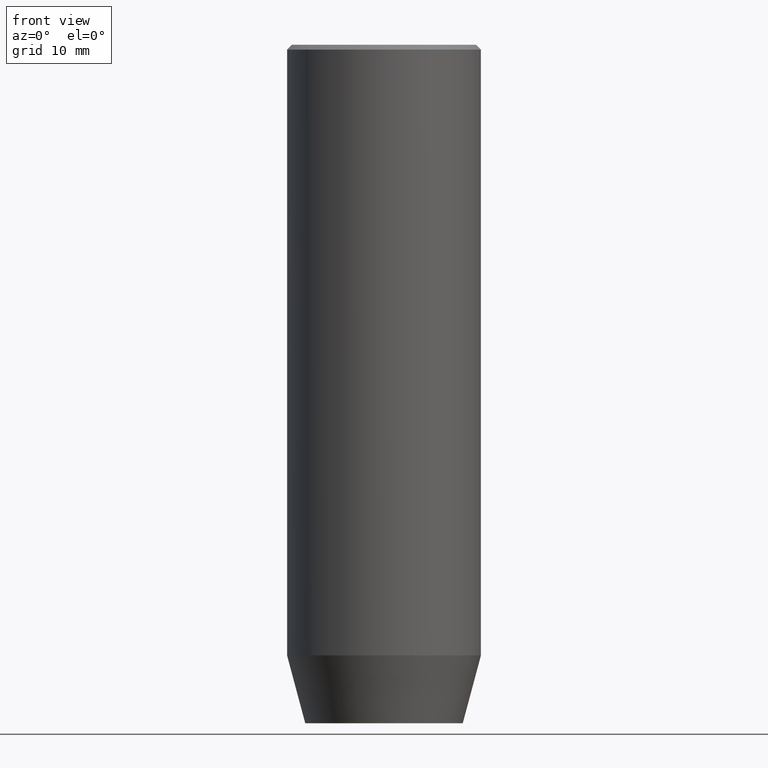
[diagram: clean part render]
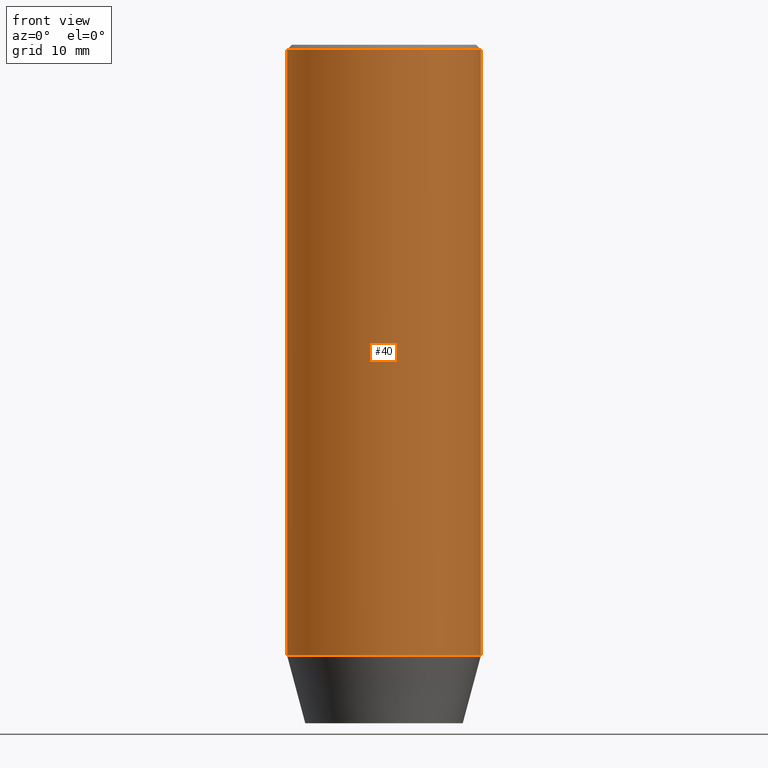
[diagram: same view with one face highlighted and labeled with its STEP entity id]
A machine part, front view. The second image highlights one B-rep face of the part: STEP entity #40.
In plain terms, the highlighted cylindrical surface (partial cylindrical patch) has radius 10 mm, axis along (-0, -0, 1).
Its self-contained STEP definition (entity closure, byte-faithful):
#40 = ADVANCED_FACE ( 'NONE', ( #262 ), #163, .T. ) ;
#85 = LINE ( 'NONE', #413, #94 ) ;
#94 = VECTOR ( 'NONE', #240, 1000.000000000000000 ) ;
#97 = EDGE_CURVE ( 'NONE', #452, #102, #376, .T. ) ;
#102 = VERTEX_POINT ( 'NONE', #168 ) ;
#127 = CARTESIAN_POINT ( 'NONE',  ( 0.000000000000000000, 0.000000000000000000, -63.00000000000000000 ) ) ;
#131 = DIRECTION ( 'NONE',  ( -0.000000000000000000, -0.000000000000000000, 1.000000000000000000 ) ) ;
#138 = DIRECTION ( 'NONE',  ( -0.000000000000000000, -0.000000000000000000, 1.000000000000000000 ) ) ;
#140 = AXIS2_PLACEMENT_3D ( 'NONE', #424, #131, #331 ) ;
#161 = AXIS2_PLACEMENT_3D ( 'NONE', #369, #564, #235 ) ;
#163 = CYLINDRICAL_SURFACE ( 'NONE', #140, 10.00000000000000000 ) ;
#168 = CARTESIAN_POINT ( 'NONE',  ( 10.00000000000000000, 0.000000000000000000, -63.00000000000000000 ) ) ;
#195 = VERTEX_POINT ( 'NONE', #320 ) ;
#201 = ORIENTED_EDGE ( 'NONE', *, *, #518, .F. ) ;
#211 = EDGE_CURVE ( 'NONE', #428, #195, #251, .T. ) ;
#235 = DIRECTION ( 'NONE',  ( 1.000000000000000000, 0.000000000000000000, 0.000000000000000000 ) ) ;
#240 = DIRECTION ( 'NONE',  ( -0.000000000000000000, -0.000000000000000000, 1.000000000000000000 ) ) ;
#251 = CIRCLE ( 'NONE', #161, 10.00000000000000000 ) ;
#252 = EDGE_CURVE ( 'NONE', #102, #428, #85, .T. ) ;
#262 = FACE_OUTER_BOUND ( 'NONE', #397, .T. ) ;
#292 = ORIENTED_EDGE ( 'NONE', *, *, #252, .T. ) ;
#320 = CARTESIAN_POINT ( 'NONE',  ( -10.00000000000000000, 1.224646799147353256E-15, -0.4999999999999917843 ) ) ;
#326 = CARTESIAN_POINT ( 'NONE',  ( -10.00000000000000000, 1.224646799147353256E-15, -63.00000000000000000 ) ) ;
#331 = DIRECTION ( 'NONE',  ( 1.000000000000000000, 0.000000000000000000, 0.000000000000000000 ) ) ;
#369 = CARTESIAN_POINT ( 'NONE',  ( 0.000000000000000000, 0.000000000000000000, -0.4999999999999917843 ) ) ;
#376 = CIRCLE ( 'NONE', #553, 10.00000000000000000 ) ;
#381 = DIRECTION ( 'NONE',  ( -0.000000000000000000, -0.000000000000000000, 1.000000000000000000 ) ) ;
#397 = EDGE_LOOP ( 'NONE', ( #201, #506, #292, #554 ) ) ;
#413 = CARTESIAN_POINT ( 'NONE',  ( 10.00000000000000000, 0.000000000000000000, 0.000000000000000000 ) ) ;
#424 = CARTESIAN_POINT ( 'NONE',  ( 0.000000000000000000, 0.000000000000000000, 0.000000000000000000 ) ) ;
#428 = VERTEX_POINT ( 'NONE', #507 ) ;
#452 = VERTEX_POINT ( 'NONE', #326 ) ;
#461 = VECTOR ( 'NONE', #138, 1000.000000000000000 ) ;
#463 = DIRECTION ( 'NONE',  ( 1.000000000000000000, 0.000000000000000000, 0.000000000000000000 ) ) ;
#506 = ORIENTED_EDGE ( 'NONE', *, *, #97, .T. ) ;
#507 = CARTESIAN_POINT ( 'NONE',  ( 10.00000000000000000, 0.000000000000000000, -0.4999999999999917843 ) ) ;
#518 = EDGE_CURVE ( 'NONE', #452, #195, #585, .T. ) ;
#534 = CARTESIAN_POINT ( 'NONE',  ( -10.00000000000000000, 1.224646799147353256E-15, 0.000000000000000000 ) ) ;
#553 = AXIS2_PLACEMENT_3D ( 'NONE', #127, #381, #463 ) ;
#554 = ORIENTED_EDGE ( 'NONE', *, *, #211, .T. ) ;
#564 = DIRECTION ( 'NONE',  ( 0.000000000000000000, 0.000000000000000000, -1.000000000000000000 ) ) ;
#585 = LINE ( 'NONE', #534, #461 ) ;